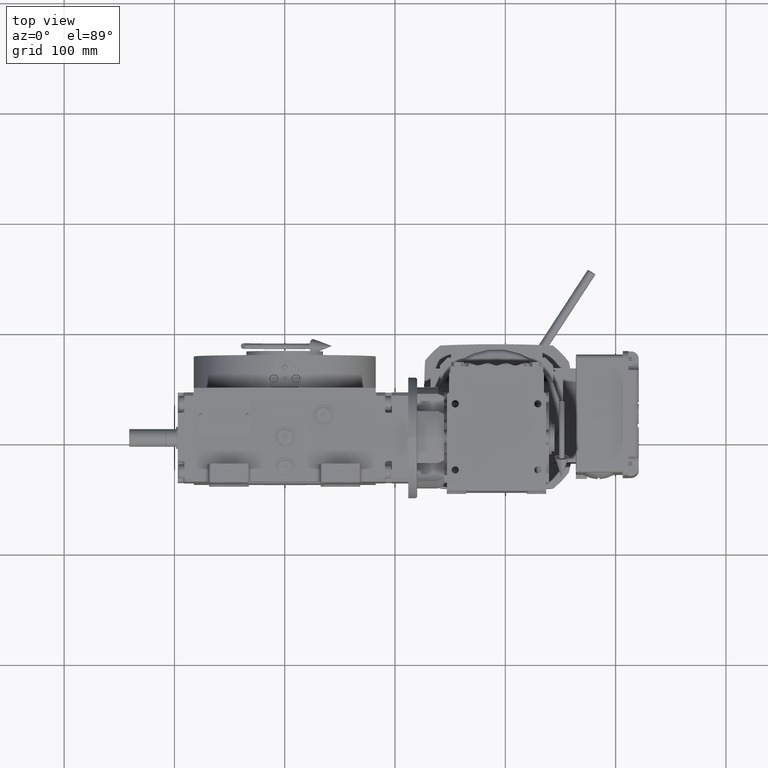
[diagram: clean part render]
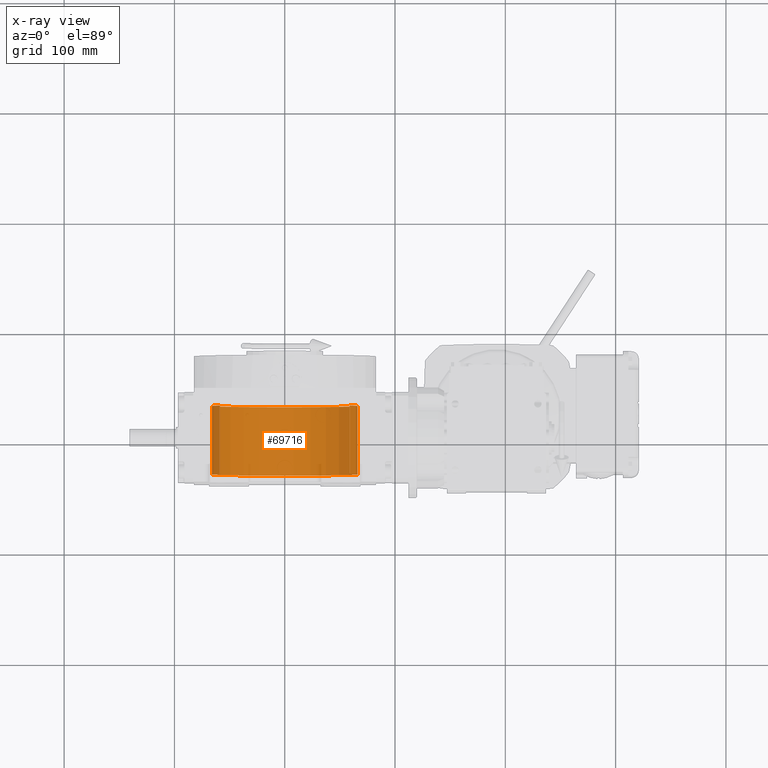
[diagram: x-ray — body ghosted, one internal face saturated and labeled with its STEP entity id]
A machine part, top view, then the same camera in x-ray: the body is ghosted and one INTERNAL B-rep face — a face not visible from any outside direction — is saturated and labeled: STEP entity #69716.
In plain terms, the highlighted cylindrical surface (partial cylindrical patch) has radius 66 mm, axis along (0, 1, 0).
Its self-contained STEP definition (entity closure, byte-faithful):
#3735 = DIRECTION ( 'NONE',  ( 0.000000000000000000, 0.000000000000000000, 1.000000000000000000 ) ) ;
#5247 = CARTESIAN_POINT ( 'NONE',  ( 0.000000000000000000, 30.00000000000002842, 0.000000000000000000 ) ) ;
#9930 = CARTESIAN_POINT ( 'NONE',  ( -58.78775382679628336, -32.00000000000002842, 30.00000000000000000 ) ) ;
#10012 = AXIS2_PLACEMENT_3D ( 'NONE', #5247, #19052, #3735 ) ;
#10328 = CARTESIAN_POINT ( 'NONE',  ( 0.000000000000000000, -32.00000000000002842, 0.000000000000000000 ) ) ;
#13570 = DIRECTION ( 'NONE',  ( 0.000000000000000000, 0.000000000000000000, 1.000000000000000000 ) ) ;
#16252 = DIRECTION ( 'NONE',  ( 0.000000000000000000, -1.000000000000000000, 0.000000000000000000 ) ) ;
#19039 = EDGE_LOOP ( 'NONE', ( #86371, #69305, #74011, #29581 ) ) ;
#19052 = DIRECTION ( 'NONE',  ( -0.000000000000000000, 1.000000000000000000, -0.000000000000000000 ) ) ;
#21232 = CARTESIAN_POINT ( 'NONE',  ( 0.000000000000000000, 381.2229626926358037, 0.000000000000000000 ) ) ;
#29125 = VECTOR ( 'NONE', #40045, 1000.000000000000000 ) ;
#29581 = ORIENTED_EDGE ( 'NONE', *, *, #31747, .T. ) ;
#31747 = EDGE_CURVE ( 'NONE', #38537, #88878, #73534, .T. ) ;
#35688 = EDGE_CURVE ( 'NONE', #61816, #48058, #99991, .T. ) ;
#38537 = VERTEX_POINT ( 'NONE', #94335 ) ;
#40045 = DIRECTION ( 'NONE',  ( -0.000000000000000000, 1.000000000000000000, -0.000000000000000000 ) ) ;
#42481 = DIRECTION ( 'NONE',  ( 0.000000000000000000, 0.000000000000000000, 1.000000000000000000 ) ) ;
#45332 = AXIS2_PLACEMENT_3D ( 'NONE', #21232, #52342, #13570 ) ;
#48058 = VERTEX_POINT ( 'NONE', #9930 ) ;
#48424 = CARTESIAN_POINT ( 'NONE',  ( -58.78775382679628336, 30.00000000000002842, 30.00000000000000000 ) ) ;
#48970 = CARTESIAN_POINT ( 'NONE',  ( 58.78775382679628336, -32.00000000000002842, 30.00000000000000000 ) ) ;
#52342 = DIRECTION ( 'NONE',  ( -0.000000000000000000, 1.000000000000000000, -0.000000000000000000 ) ) ;
#55953 = AXIS2_PLACEMENT_3D ( 'NONE', #10328, #80755, #42481 ) ;
#61464 = VECTOR ( 'NONE', #16252, 1000.000000000000000 ) ;
#61816 = VERTEX_POINT ( 'NONE', #48970 ) ;
#62706 = LINE ( 'NONE', #86196, #61464 ) ;
#67665 = FACE_OUTER_BOUND ( 'NONE', #19039, .T. ) ;
#69305 = ORIENTED_EDGE ( 'NONE', *, *, #35688, .F. ) ;
#69716 = ADVANCED_FACE ( 'NONE', ( #67665 ), #98784, .F. ) ;
#70654 = LINE ( 'NONE', #93128, #29125 ) ;
#73534 = CIRCLE ( 'NONE', #10012, 66.00000000000000000 ) ;
#74011 = ORIENTED_EDGE ( 'NONE', *, *, #90948, .T. ) ;
#80755 = DIRECTION ( 'NONE',  ( -0.000000000000000000, 1.000000000000000000, -0.000000000000000000 ) ) ;
#86196 = CARTESIAN_POINT ( 'NONE',  ( -58.78775382679628336, 381.2229626926358037, 30.00000000000000000 ) ) ;
#86371 = ORIENTED_EDGE ( 'NONE', *, *, #87873, .T. ) ;
#87873 = EDGE_CURVE ( 'NONE', #88878, #48058, #62706, .T. ) ;
#88878 = VERTEX_POINT ( 'NONE', #48424 ) ;
#90948 = EDGE_CURVE ( 'NONE', #61816, #38537, #70654, .T. ) ;
#93128 = CARTESIAN_POINT ( 'NONE',  ( 58.78775382679628336, 381.2229626926358037, 30.00000000000000000 ) ) ;
#94335 = CARTESIAN_POINT ( 'NONE',  ( 58.78775382679628336, 30.00000000000002842, 30.00000000000000000 ) ) ;
#98784 = CYLINDRICAL_SURFACE ( 'NONE', #45332, 66.00000000000000000 ) ;
#99991 = CIRCLE ( 'NONE', #55953, 66.00000000000000000 ) ;